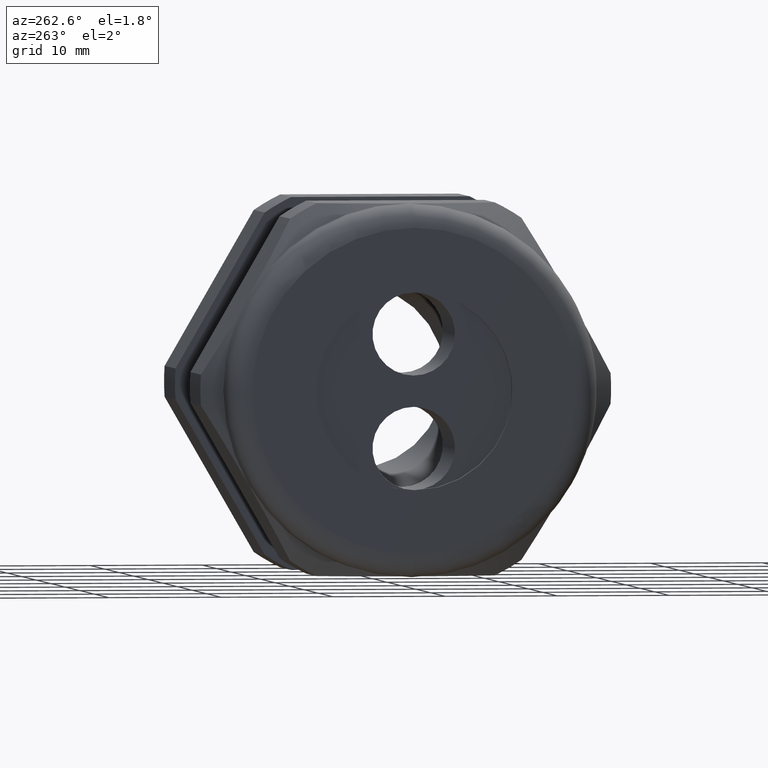
[diagram: clean part render]
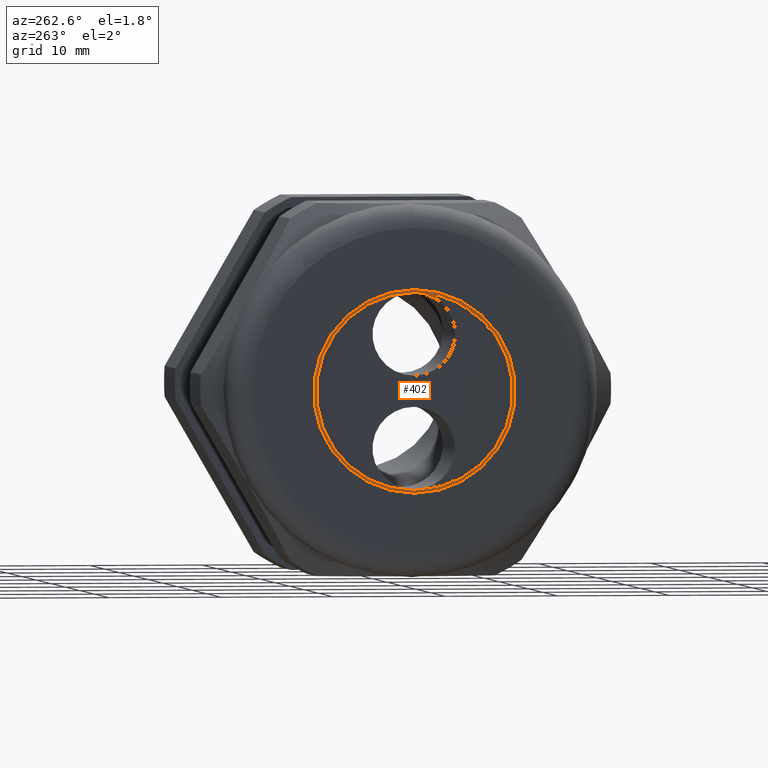
[diagram: same view with one face highlighted and labeled with its STEP entity id]
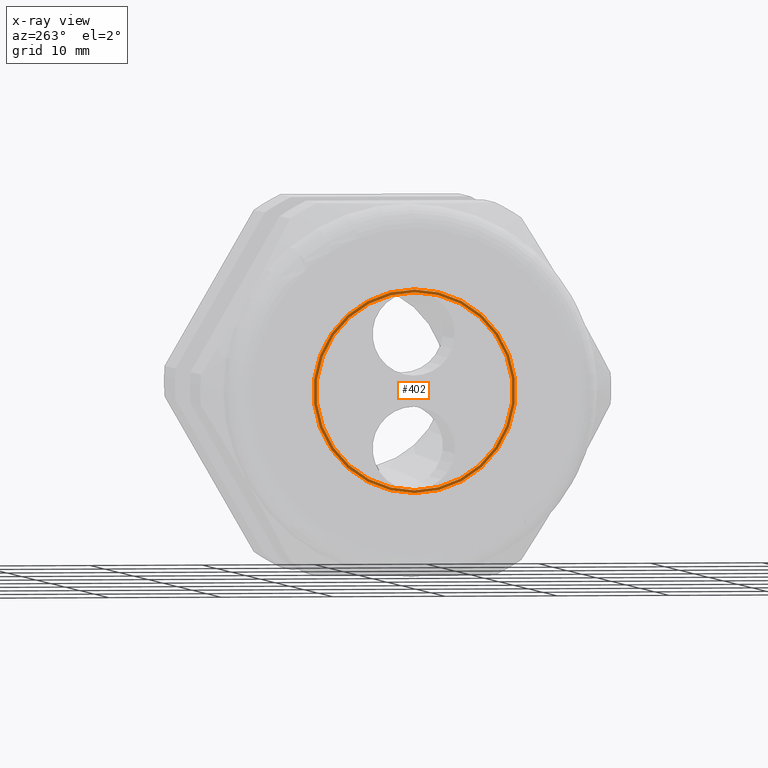
[diagram: x-ray of the same camera — body ghosted, the highlighted face saturated]
A machine part, auxiliary view. The second image highlights one B-rep face of the part: STEP entity #402.
The next image is the same camera in x-ray: the body ghosted, the highlighted face saturated — about 0% of this face is hidden behind the body in this view.
In plain terms, the highlighted planar face has unit normal (-1, 0, 0).
Its self-contained STEP definition (entity closure, byte-faithful):
#1 = VERTEX_POINT ( 'NONE', #990 ) ;
#356 = EDGE_CURVE ( 'NONE', #4913, #1, #1712, .T. ) ;
#362 = ORIENTED_EDGE ( 'NONE', *, *, #4858, .F. ) ;
#367 = ORIENTED_EDGE ( 'NONE', *, *, #356, .F. ) ;
#402 = ADVANCED_FACE ( 'NONE', ( #1814, #1813 ), #1819, .T. ) ;
#431 = EDGE_LOOP ( 'NONE', ( #367, #362 ) ) ;
#474 = ORIENTED_EDGE ( 'NONE', *, *, #4934, .T. ) ;
#492 = ORIENTED_EDGE ( 'NONE', *, *, #5388, .T. ) ;
#541 = EDGE_LOOP ( 'NONE', ( #492, #474 ) ) ;
#990 = CARTESIAN_POINT ( 'NONE',  ( -1.529999999999999800, 4.225031457058367800E-017, -0.3449999999999999200 ) ) ;
#1709 = DIRECTION ( 'NONE',  ( 0.0000000000000000000, 0.0000000000000000000, 1.000000000000000000 ) ) ;
#1710 = DIRECTION ( 'NONE',  ( -1.000000000000000000, 0.0000000000000000000, 0.0000000000000000000 ) ) ;
#1711 = AXIS2_PLACEMENT_3D ( 'NONE', #1717, #1710, #1709 ) ;
#1712 = CIRCLE ( 'NONE', #1711, 0.3449999999999999200 ) ;
#1717 = CARTESIAN_POINT ( 'NONE',  ( -1.529999999999999800, 0.0000000000000000000, 0.0000000000000000000 ) ) ;
#1809 = DIRECTION ( 'NONE',  ( 0.0000000000000000000, 0.0000000000000000000, 1.000000000000000000 ) ) ;
#1810 = DIRECTION ( 'NONE',  ( -1.000000000000000000, 0.0000000000000000000, 0.0000000000000000000 ) ) ;
#1811 = CARTESIAN_POINT ( 'NONE',  ( -1.529999999999999800, 0.0000000000000000000, 0.0000000000000000000 ) ) ;
#1812 = AXIS2_PLACEMENT_3D ( 'NONE', #1811, #1810, #1809 ) ;
#1813 = FACE_OUTER_BOUND ( 'NONE', #541, .T. ) ;
#1814 = FACE_BOUND ( 'NONE', #431, .T. ) ;
#1819 = PLANE ( 'NONE',  #1812 ) ;
#3280 = DIRECTION ( 'NONE',  ( 0.0000000000000000000, 0.0000000000000000000, 1.000000000000000000 ) ) ;
#3281 = DIRECTION ( 'NONE',  ( -1.000000000000000000, 0.0000000000000000000, 0.0000000000000000000 ) ) ;
#3282 = CARTESIAN_POINT ( 'NONE',  ( -1.529999999999999800, 0.0000000000000000000, 0.0000000000000000000 ) ) ;
#3283 = AXIS2_PLACEMENT_3D ( 'NONE', #3282, #3281, #3280 ) ;
#3288 = CIRCLE ( 'NONE', #3283, 0.3449999999999999200 ) ;
#3371 = CARTESIAN_POINT ( 'NONE',  ( -1.529999999999999800, 0.0000000000000000000, 0.3449999999999999200 ) ) ;
#3411 = CARTESIAN_POINT ( 'NONE',  ( -1.529999999999999800, 0.0000000000000000000, 0.3549999999999999800 ) ) ;
#3449 = DIRECTION ( 'NONE',  ( 0.0000000000000000000, 0.0000000000000000000, 1.000000000000000000 ) ) ;
#3450 = DIRECTION ( 'NONE',  ( -1.000000000000000000, 0.0000000000000000000, 0.0000000000000000000 ) ) ;
#3451 = CARTESIAN_POINT ( 'NONE',  ( -1.529999999999999800, 0.0000000000000000000, 0.0000000000000000000 ) ) ;
#3452 = AXIS2_PLACEMENT_3D ( 'NONE', #3451, #3450, #3449 ) ;
#3453 = CIRCLE ( 'NONE', #3452, 0.3549999999999999800 ) ;
#4130 = DIRECTION ( 'NONE',  ( 0.0000000000000000000, 0.0000000000000000000, 1.000000000000000000 ) ) ;
#4131 = DIRECTION ( 'NONE',  ( -1.000000000000000000, 0.0000000000000000000, 0.0000000000000000000 ) ) ;
#4132 = CARTESIAN_POINT ( 'NONE',  ( -1.529999999999999800, 0.0000000000000000000, 0.0000000000000000000 ) ) ;
#4133 = AXIS2_PLACEMENT_3D ( 'NONE', #4132, #4131, #4130 ) ;
#4134 = CIRCLE ( 'NONE', #4133, 0.3549999999999999800 ) ;
#4177 = CARTESIAN_POINT ( 'NONE',  ( -1.529999999999999800, 4.347496136973103500E-017, -0.3549999999999999800 ) ) ;
#4858 = EDGE_CURVE ( 'NONE', #1, #4913, #3288, .T. ) ;
#4913 = VERTEX_POINT ( 'NONE', #3371 ) ;
#4919 = VERTEX_POINT ( 'NONE', #3411 ) ;
#4934 = EDGE_CURVE ( 'NONE', #5398, #4919, #3453, .T. ) ;
#5388 = EDGE_CURVE ( 'NONE', #4919, #5398, #4134, .T. ) ;
#5398 = VERTEX_POINT ( 'NONE', #4177 ) ;